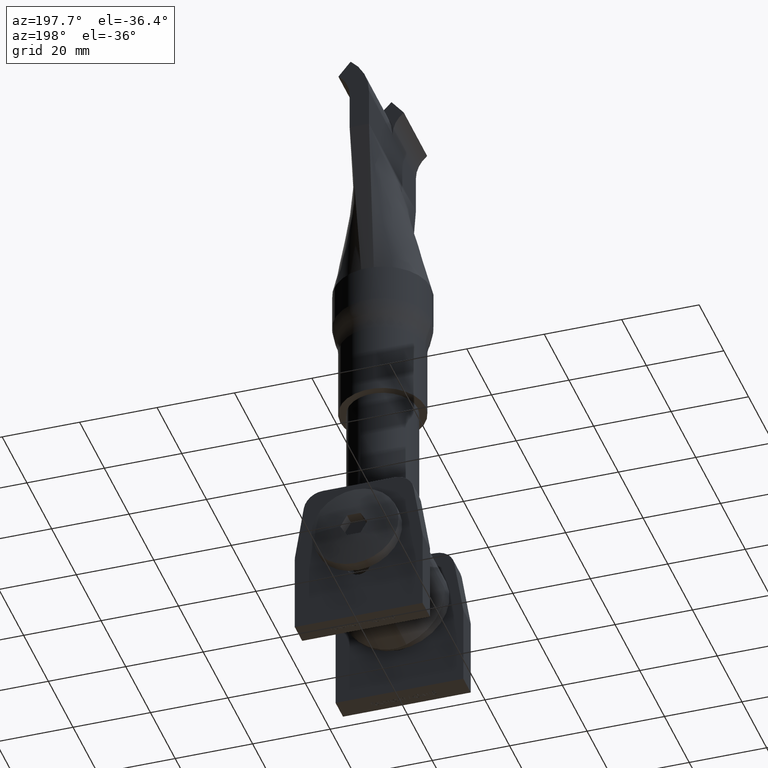
[diagram: clean part render]
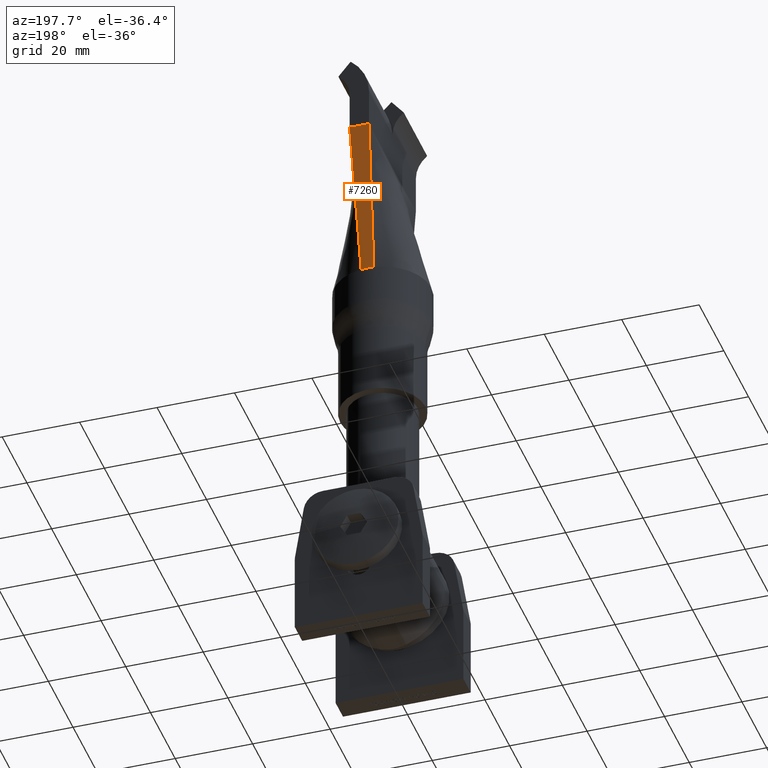
[diagram: same view with one face highlighted and labeled with its STEP entity id]
A machine part, auxiliary view. The second image highlights one B-rep face of the part: STEP entity #7260.
In plain terms, the highlighted face is a freeform B-spline surface patch.
Its self-contained STEP definition (entity closure, byte-faithful):
#107 = CARTESIAN_POINT ( 'NONE',  ( -1.652238021619308900, 12.39034229764009400, 36.00000000000000000 ) ) ;
#352 = CARTESIAN_POINT ( 'NONE',  ( -1.630688413461159700, 12.39323175096291500, 36.00000000000000000 ) ) ;
#1087 = CARTESIAN_POINT ( 'NONE',  ( 2.550000000000000700, 19.00000000000000000, 75.00000000000001400 ) ) ;
#1167 = FACE_OUTER_BOUND ( 'NONE', #18883, .T. ) ;
#1208 = LINE ( 'NONE', #6667, #3231 ) ;
#1214 = CARTESIAN_POINT ( 'NONE',  ( 1.672415672881149200, 19.06535911389675400, 75.39000000000001500 ) ) ;
#1515 = CARTESIAN_POINT ( 'NONE',  ( 1.630689462588166000, 12.39323973739352300, 36.00000000000000000 ) ) ;
#1632 = CARTESIAN_POINT ( 'NONE',  ( -1.632139491826174500, 12.32138826832813900, 35.58468259571977700 ) ) ;
#2222 = EDGE_CURVE ( 'NONE', #11778, #3366, #1208, .T. ) ;
#2228 = VECTOR ( 'NONE', #3751, 1000.000000000000200 ) ;
#2691 = CARTESIAN_POINT ( 'NONE',  ( -0.5428219170472801100, 12.43031914035011300, 35.58468259571977700 ) ) ;
#2762 = CARTESIAN_POINT ( 'NONE',  ( 2.516666666666667500, 19.00000000000000000, 75.00000000000001400 ) ) ;
#2833 = CARTESIAN_POINT ( 'NONE',  ( -0.8333333333333375900, 19.00000000000000000, 75.00000000000001400 ) ) ;
#2895 = VECTOR ( 'NONE', #17932, 1000.000000000000200 ) ;
#2903 = CARTESIAN_POINT ( 'NONE',  ( 1.652238021619313100, 12.39034229764009300, 36.00000000000000000 ) ) ;
#2993 = CARTESIAN_POINT ( 'NONE',  ( 1.089869034719105100, 12.46433821799269200, 36.00000000594020100 ) ) ;
#3100 = EDGE_CURVE ( 'NONE', #16858, #11778, #15149, .T. ) ;
#3121 = CARTESIAN_POINT ( 'NONE',  ( -2.525418736189524200, 19.06608239504038900, 75.39000000000001500 ) ) ;
#3231 = VECTOR ( 'NONE', #6602, 1000.000000000000000 ) ;
#3366 = VERTEX_POINT ( 'NONE', #15936 ) ;
#3751 = DIRECTION ( 'NONE',  ( -0.02197179299435890500, -0.1669856267571280800, -0.9857144823777025400 ) ) ;
#4431 = CARTESIAN_POINT ( 'NONE',  ( 1.630681407142344800, 12.39317869428179700, 36.00000000000000000 ) ) ;
#4495 = CARTESIAN_POINT ( 'NONE',  ( 0.5458830226090676300, 12.49954356834578600, 36.00000000000000000 ) ) ;
#4728 = CARTESIAN_POINT ( 'NONE',  ( -1.630688413461159700, 12.39323175096291500, 36.00000000000000000 ) ) ;
#4841 = CARTESIAN_POINT ( 'NONE',  ( -2.516666666666665700, 19.00000000000000000, 75.00000000000001400 ) ) ;
#5036 = B_SPLINE_SURFACE_WITH_KNOTS ( 'NONE', 3, 1, ( 
 ( #7634, #5959, #1087, #14132 ),
 ( #17150, #2903, #6096, #12292 ),
 ( #7415, #14064, #2762, #20307 ),
 ( #9025, #4431, #7568, #13917 ),
 ( #10753, #20234, #10613, #1214 ),
 ( #12221, #4495, #15701, #10678 ),
 ( #2691, #18832, #2833, #5897 ),
 ( #17086, #13989, #19032, #17367 ),
 ( #7920, #19238, #19101, #9372 ),
 ( #1632, #9636, #4841, #3121 ),
 ( #6232, #107, #12563, #15769 ),
 ( #17577, #11108, #14344, #15969 ) ),
 .UNSPECIFIED., .F., .F., .F.,
 ( 4, 3, 2, 3, 4 ),
 ( 2, 1, 1, 2 ),
 ( -0.01000000000000000000, 0.0000000000000000000, 0.5000000000000000000, 1.000000000000000000, 1.010000000000000000 ),
 ( -0.01064916421231325600, 0.0000000000000000000, 1.000000000000000000, 1.010000000000000000 ),
 .UNSPECIFIED. ) ;
#5897 = CARTESIAN_POINT ( 'NONE',  ( -0.8362078364405803900, 19.06500456431654200, 75.39000000000001500 ) ) ;
#5959 = CARTESIAN_POINT ( 'NONE',  ( 1.663016328857797000, 12.38892409931924000, 36.00000000000000000 ) ) ;
#6096 = CARTESIAN_POINT ( 'NONE',  ( 2.533333333333334100, 19.00000000000000000, 75.00000000000001400 ) ) ;
#6184 = CARTESIAN_POINT ( 'NONE',  ( -0.5449041371963123700, 12.50000659472836300, 36.00273873925048200 ) ) ;
#6232 = CARTESIAN_POINT ( 'NONE',  ( -1.642855092958166900, 12.31995496738048200, 35.58468259571977700 ) ) ;
#6602 = DIRECTION ( 'NONE',  ( 1.000000000000000000, 0.0000000000000000000, 0.0000000000000000000 ) ) ;
#6667 = CARTESIAN_POINT ( 'NONE',  ( -2.499999999999999100, 19.00000000000000000, 75.00000000000001400 ) ) ;
#6781 = EDGE_CURVE ( 'NONE', #18518, #16858, #17383, .T. ) ;
#7000 = ORIENTED_EDGE ( 'NONE', *, *, #2222, .T. ) ;
#7260 = ADVANCED_FACE ( 'NONE', ( #1167 ), #5036, .T. ) ;
#7415 = CARTESIAN_POINT ( 'NONE',  ( 1.632139491826178700, 12.32138826832813700, 35.58468259571977700 ) ) ;
#7568 = CARTESIAN_POINT ( 'NONE',  ( 2.500000000000000900, 19.00000000000000000, 75.00000000000001400 ) ) ;
#7634 = CARTESIAN_POINT ( 'NONE',  ( 1.653570694090163300, 12.31852166643282200, 35.58468259571977700 ) ) ;
#7920 = CARTESIAN_POINT ( 'NONE',  ( -1.621423890694182200, 12.32282156927579400, 35.58468259571977700 ) ) ;
#8197 = LINE ( 'NONE', #10076, #2228 ) ;
#9025 = CARTESIAN_POINT ( 'NONE',  ( 1.621423890694186500, 12.32282156927579200, 35.58468259571977700 ) ) ;
#9096 = ORIENTED_EDGE ( 'NONE', *, *, #18142, .T. ) ;
#9307 = CARTESIAN_POINT ( 'NONE',  ( 1.630689462588166000, 12.39323973739352300, 36.00000000000000000 ) ) ;
#9372 = CARTESIAN_POINT ( 'NONE',  ( -2.508693185928575700, 19.06606821305718200, 75.39000000000001500 ) ) ;
#9636 = CARTESIAN_POINT ( 'NONE',  ( -1.641459714380824700, 12.39176049596094700, 36.00000000000000000 ) ) ;
#10076 = CARTESIAN_POINT ( 'NONE',  ( 2.065340703571172800, 15.69658934714089700, 55.50000000000000000 ) ) ;
#10613 = CARTESIAN_POINT ( 'NONE',  ( 1.666666666666663900, 19.00000000000000000, 75.00000000000001400 ) ) ;
#10678 = CARTESIAN_POINT ( 'NONE',  ( 0.8362078364405717300, 19.06500456431654200, 75.39000000000001500 ) ) ;
#10753 = CARTESIAN_POINT ( 'NONE',  ( 1.085643834094566700, 12.39448661665867100, 35.58468259571977700 ) ) ;
#11108 = CARTESIAN_POINT ( 'NONE',  ( -1.663016328857793000, 12.38892409931924200, 36.00000000000000000 ) ) ;
#11778 = VERTEX_POINT ( 'NONE', #15759 ) ;
#12221 = CARTESIAN_POINT ( 'NONE',  ( 0.5428219170472845500, 12.43031914035011300, 35.58468259571977700 ) ) ;
#12292 = CARTESIAN_POINT ( 'NONE',  ( 2.542144286450474000, 19.06609657702360000, 75.39000000000001500 ) ) ;
#12563 = CARTESIAN_POINT ( 'NONE',  ( -2.533333333333332300, 19.00000000000000000, 75.00000000000001400 ) ) ;
#12647 = CARTESIAN_POINT ( 'NONE',  ( 0.5452066589022975800, 12.49999340344125400, 36.00273805592337300 ) ) ;
#13917 = CARTESIAN_POINT ( 'NONE',  ( 2.508693185928577500, 19.06606821305718200, 75.39000000000001500 ) ) ;
#13989 = CARTESIAN_POINT ( 'NONE',  ( -1.091766045218128800, 12.46408861032445600, 36.00000000000000000 ) ) ;
#14064 = CARTESIAN_POINT ( 'NONE',  ( 1.641459714380828900, 12.39176049596094500, 36.00000000000000000 ) ) ;
#14132 = CARTESIAN_POINT ( 'NONE',  ( 2.558869836711422400, 19.06611075900680800, 75.39000000000001500 ) ) ;
#14344 = CARTESIAN_POINT ( 'NONE',  ( -2.549999999999998900, 19.00000000000000000, 75.00000000000001400 ) ) ;
#14583 = ORIENTED_EDGE ( 'NONE', *, *, #3100, .T. ) ;
#15149 = LINE ( 'NONE', #16047, #2895 ) ;
#15701 = CARTESIAN_POINT ( 'NONE',  ( 0.8333333333333290400, 19.00000000000000000, 75.00000000000001400 ) ) ;
#15759 = CARTESIAN_POINT ( 'NONE',  ( -2.499999999999999100, 19.00000000000000000, 75.00000000000001400 ) ) ;
#15769 = CARTESIAN_POINT ( 'NONE',  ( -2.542144286450472200, 19.06609657702360000, 75.39000000000001500 ) ) ;
#15936 = CARTESIAN_POINT ( 'NONE',  ( 2.500000000000000900, 19.00000000000000000, 74.99999999999998600 ) ) ;
#15969 = CARTESIAN_POINT ( 'NONE',  ( -2.558869836711421100, 19.06611075900680800, 75.39000000000001500 ) ) ;
#16047 = CARTESIAN_POINT ( 'NONE',  ( -2.065340703571169700, 15.69658934714090000, 55.50000000000000000 ) ) ;
#16858 = VERTEX_POINT ( 'NONE', #352 ) ;
#17086 = CARTESIAN_POINT ( 'NONE',  ( -1.085643834094562400, 12.39448661665867100, 35.58468259571977700 ) ) ;
#17150 = CARTESIAN_POINT ( 'NONE',  ( 1.642855092958171100, 12.31995496738048100, 35.58468259571977700 ) ) ;
#17367 = CARTESIAN_POINT ( 'NONE',  ( -1.672415672881154600, 19.06535911389675400, 75.39000000000001500 ) ) ;
#17383 = B_SPLINE_CURVE_WITH_KNOTS ( 'NONE', 3,
 ( #1515, #2993, #12647, #6184, #17395, #4728 ),
 .UNSPECIFIED., .F., .F.,
 ( 4, 2, 4 ),
 ( 0.0000000000000000000, 0.001634366496135107300, 0.003268732992270214700 ),
 .UNSPECIFIED. ) ;
#17395 = CARTESIAN_POINT ( 'NONE',  ( -1.089869168108704000, 12.46433820051645100, 36.00000000637504600 ) ) ;
#17577 = CARTESIAN_POINT ( 'NONE',  ( -1.653570694090159300, 12.31852166643282400, 35.58468259571977700 ) ) ;
#17932 = DIRECTION ( 'NONE',  ( -0.02197179299435897100, 0.1669856267571280500, 0.9857144823777025400 ) ) ;
#18142 = EDGE_CURVE ( 'NONE', #3366, #18518, #8197, .T. ) ;
#18518 = VERTEX_POINT ( 'NONE', #9307 ) ;
#18832 = CARTESIAN_POINT ( 'NONE',  ( -0.5458830226090633000, 12.49954356834578600, 36.00000000000000000 ) ) ;
#18883 = EDGE_LOOP ( 'NONE', ( #19223, #14583, #7000, #9096 ) ) ;
#19032 = CARTESIAN_POINT ( 'NONE',  ( -1.666666666666669200, 19.00000000000000000, 75.00000000000001400 ) ) ;
#19101 = CARTESIAN_POINT ( 'NONE',  ( -2.499999999999999100, 19.00000000000000000, 75.00000000000001400 ) ) ;
#19223 = ORIENTED_EDGE ( 'NONE', *, *, #6781, .T. ) ;
#19238 = CARTESIAN_POINT ( 'NONE',  ( -1.630681407142340600, 12.39317869428179900, 36.00000000000000000 ) ) ;
#20234 = CARTESIAN_POINT ( 'NONE',  ( 1.091766045218133300, 12.46408861032445600, 36.00000000000000000 ) ) ;
#20307 = CARTESIAN_POINT ( 'NONE',  ( 2.525418736189525900, 19.06608239504038900, 75.39000000000001500 ) ) ;